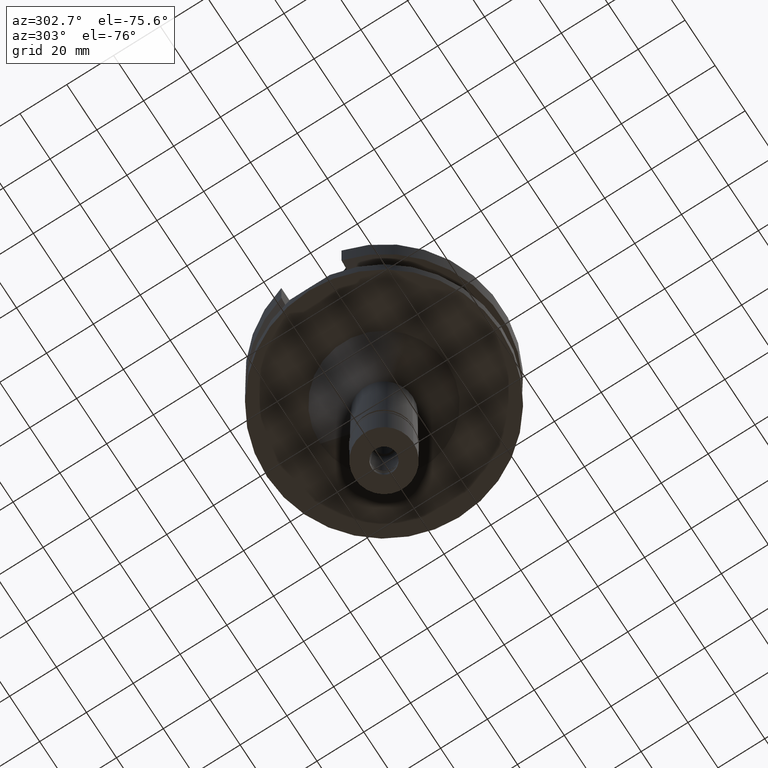
[diagram: clean part render]
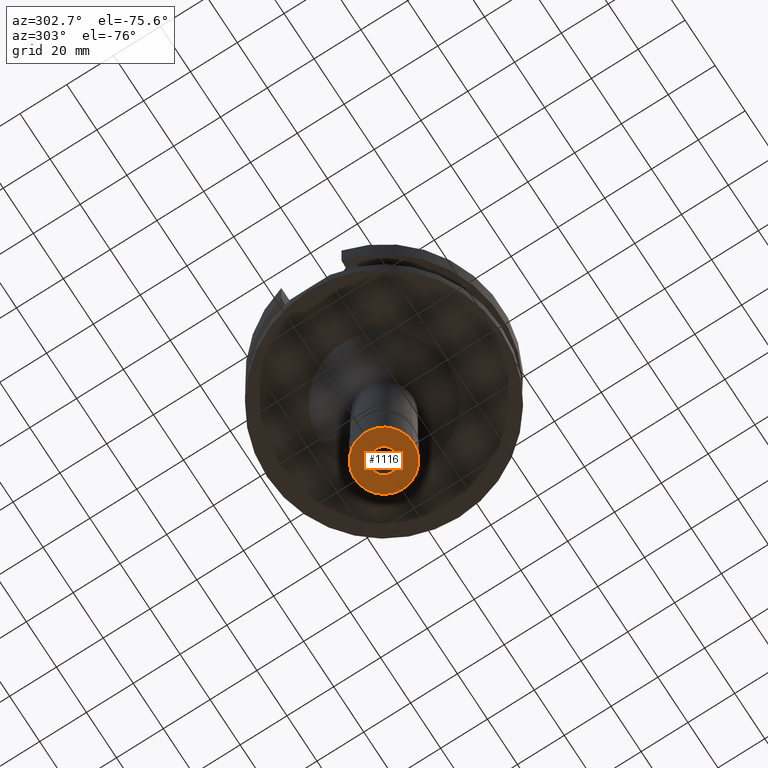
[diagram: same view with one face highlighted and labeled with its STEP entity id]
A machine part, auxiliary view. The second image highlights one B-rep face of the part: STEP entity #1116.
In plain terms, the highlighted planar face has unit normal (0, 0, -1).
Its self-contained STEP definition (entity closure, byte-faithful):
#46 = CARTESIAN_POINT ( 'NONE',  ( 0.0000000000000000000, -5.250000000000000000, -22.89999999999999858 ) ) ;
#48 = CARTESIAN_POINT ( 'NONE',  ( 0.0000000000000000000, 0.0000000000000000000, -22.89999999999999858 ) ) ;
#217 = ORIENTED_EDGE ( 'NONE', *, *, #1914, .F. ) ;
#224 = DIRECTION ( 'NONE',  ( 0.0000000000000000000, -1.000000000000000000, 0.0000000000000000000 ) ) ;
#227 = AXIS2_PLACEMENT_3D ( 'NONE', #48, #1808, #2043 ) ;
#275 = FACE_OUTER_BOUND ( 'NONE', #2765, .T. ) ;
#364 = VERTEX_POINT ( 'NONE', #3005 ) ;
#677 = CARTESIAN_POINT ( 'NONE',  ( 0.0000000000000000000, 0.0000000000000000000, -22.89999999999999858 ) ) ;
#695 = DIRECTION ( 'NONE',  ( 0.0000000000000000000, 0.0000000000000000000, -1.000000000000000000 ) ) ;
#920 = ORIENTED_EDGE ( 'NONE', *, *, #1750, .F. ) ;
#941 = PLANE ( 'NONE',  #1815 ) ;
#979 = VERTEX_POINT ( 'NONE', #46 ) ;
#994 = AXIS2_PLACEMENT_3D ( 'NONE', #1951, #1505, #2913 ) ;
#1013 = FACE_BOUND ( 'NONE', #1387, .T. ) ;
#1105 = CIRCLE ( 'NONE', #2680, 5.250000000000000000 ) ;
#1116 = ADVANCED_FACE ( 'NONE', ( #275, #1013 ), #941, .T. ) ;
#1289 = DIRECTION ( 'NONE',  ( 0.0000000000000000000, 1.000000000000000000, 0.0000000000000000000 ) ) ;
#1297 = VERTEX_POINT ( 'NONE', #2009 ) ;
#1342 = DIRECTION ( 'NONE',  ( 0.0000000000000000000, 0.0000000000000000000, 1.000000000000000000 ) ) ;
#1352 = AXIS2_PLACEMENT_3D ( 'NONE', #1841, #1342, #1289 ) ;
#1387 = EDGE_LOOP ( 'NONE', ( #217, #2247 ) ) ;
#1505 = DIRECTION ( 'NONE',  ( 0.0000000000000000000, 0.0000000000000000000, 1.000000000000000000 ) ) ;
#1674 = DIRECTION ( 'NONE',  ( 0.0000000000000000000, 1.000000000000000000, 0.0000000000000000000 ) ) ;
#1684 = DIRECTION ( 'NONE',  ( 0.0000000000000000000, 0.0000000000000000000, -1.000000000000000000 ) ) ;
#1750 = EDGE_CURVE ( 'NONE', #1297, #364, #2115, .T. ) ;
#1808 = DIRECTION ( 'NONE',  ( 0.0000000000000000000, 0.0000000000000000000, -1.000000000000000000 ) ) ;
#1815 = AXIS2_PLACEMENT_3D ( 'NONE', #2644, #1684, #224 ) ;
#1841 = CARTESIAN_POINT ( 'NONE',  ( 0.0000000000000000000, 0.0000000000000000000, -22.89999999999999858 ) ) ;
#1914 = EDGE_CURVE ( 'NONE', #2851, #979, #1105, .T. ) ;
#1951 = CARTESIAN_POINT ( 'NONE',  ( 0.0000000000000000000, 0.0000000000000000000, -22.89999999999999858 ) ) ;
#1994 = CARTESIAN_POINT ( 'NONE',  ( 0.0000000000000000000, 5.250000000000000000, -22.89999999999999858 ) ) ;
#2009 = CARTESIAN_POINT ( 'NONE',  ( 0.0000000000000000000, 12.50000000000000000, -22.89999999999999858 ) ) ;
#2043 = DIRECTION ( 'NONE',  ( 0.0000000000000000000, -1.000000000000000000, 0.0000000000000000000 ) ) ;
#2115 = CIRCLE ( 'NONE', #1352, 12.50000000000000000 ) ;
#2162 = CIRCLE ( 'NONE', #227, 5.250000000000000000 ) ;
#2247 = ORIENTED_EDGE ( 'NONE', *, *, #2786, .F. ) ;
#2604 = EDGE_CURVE ( 'NONE', #364, #1297, #2970, .T. ) ;
#2644 = CARTESIAN_POINT ( 'NONE',  ( 0.0000000000000000000, 0.0000000000000000000, -22.89999999999999858 ) ) ;
#2680 = AXIS2_PLACEMENT_3D ( 'NONE', #677, #695, #1674 ) ;
#2765 = EDGE_LOOP ( 'NONE', ( #920, #2796 ) ) ;
#2786 = EDGE_CURVE ( 'NONE', #979, #2851, #2162, .T. ) ;
#2796 = ORIENTED_EDGE ( 'NONE', *, *, #2604, .F. ) ;
#2851 = VERTEX_POINT ( 'NONE', #1994 ) ;
#2913 = DIRECTION ( 'NONE',  ( 0.0000000000000000000, -1.000000000000000000, 0.0000000000000000000 ) ) ;
#2970 = CIRCLE ( 'NONE', #994, 12.50000000000000000 ) ;
#3005 = CARTESIAN_POINT ( 'NONE',  ( 0.0000000000000000000, -12.50000000000000000, -22.89999999999999858 ) ) ;